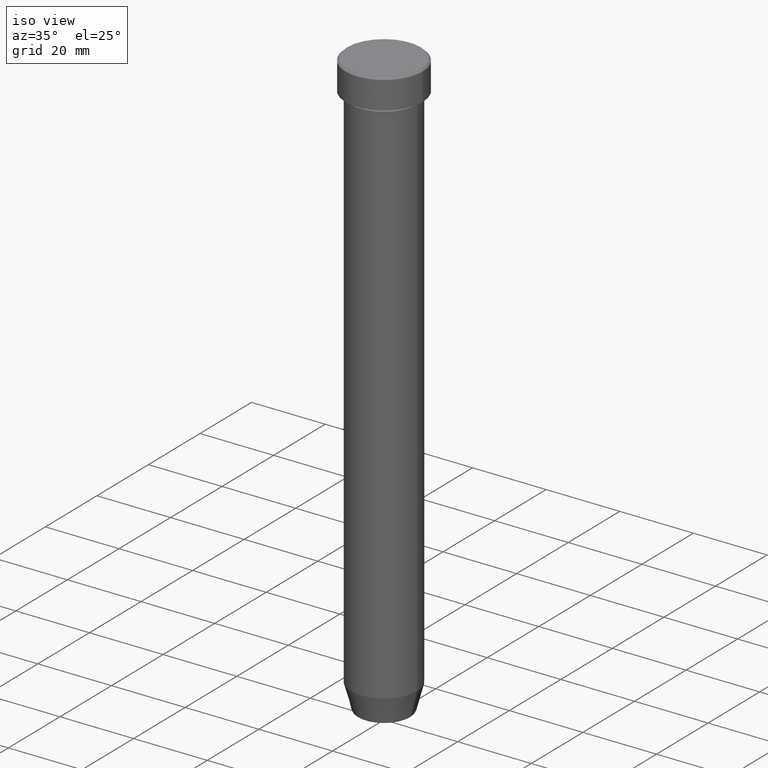
[diagram: clean part render]
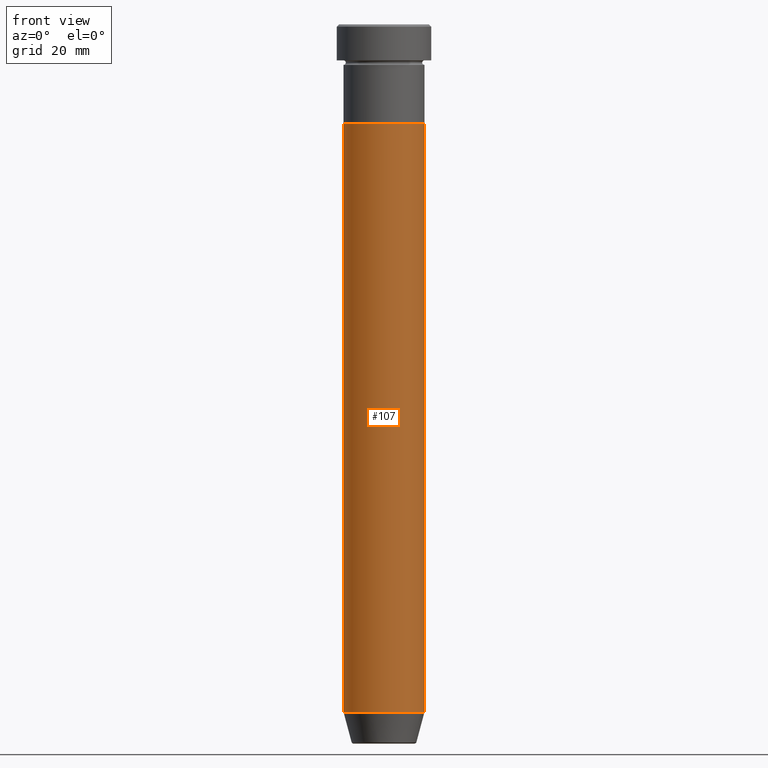
[diagram: tour spotlight — one face highlighted and labeled with its STEP entity id]
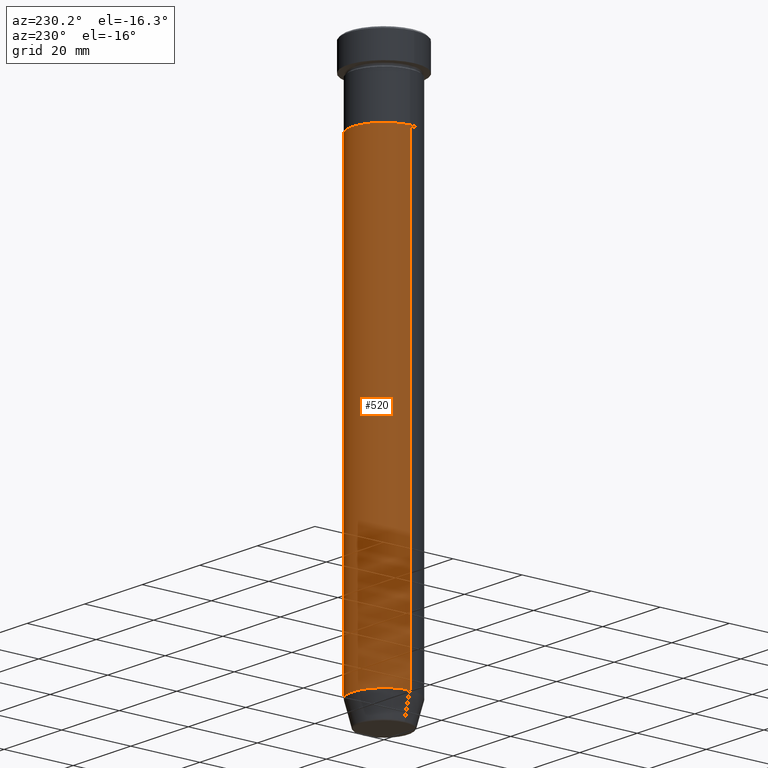
[diagram: tour spotlight — one face highlighted and labeled with its STEP entity id]
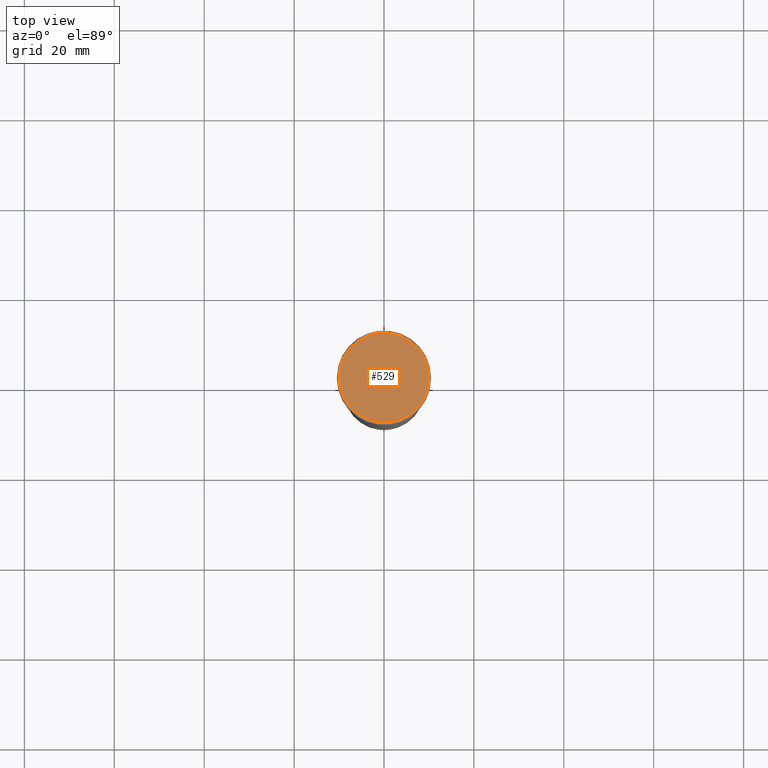
[diagram: tour spotlight — one face highlighted and labeled with its STEP entity id]
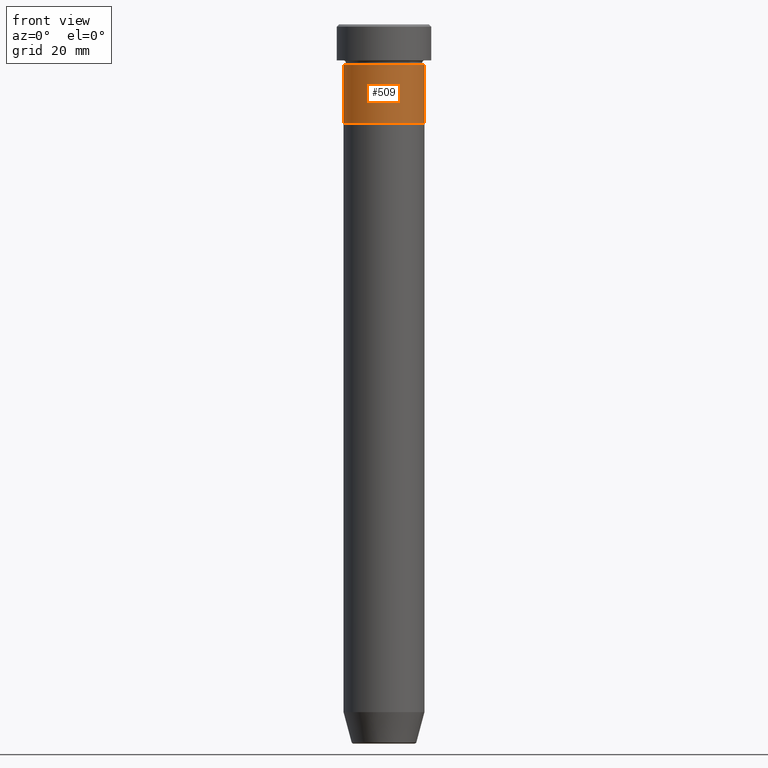
[diagram: tour spotlight — one face highlighted and labeled with its STEP entity id]
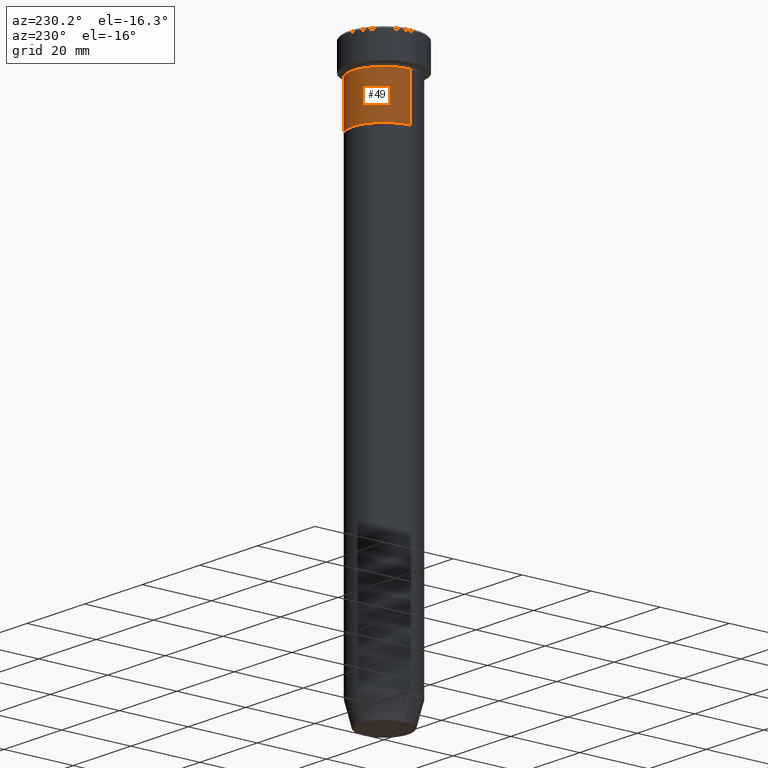
[diagram: tour spotlight — one face highlighted and labeled with its STEP entity id]
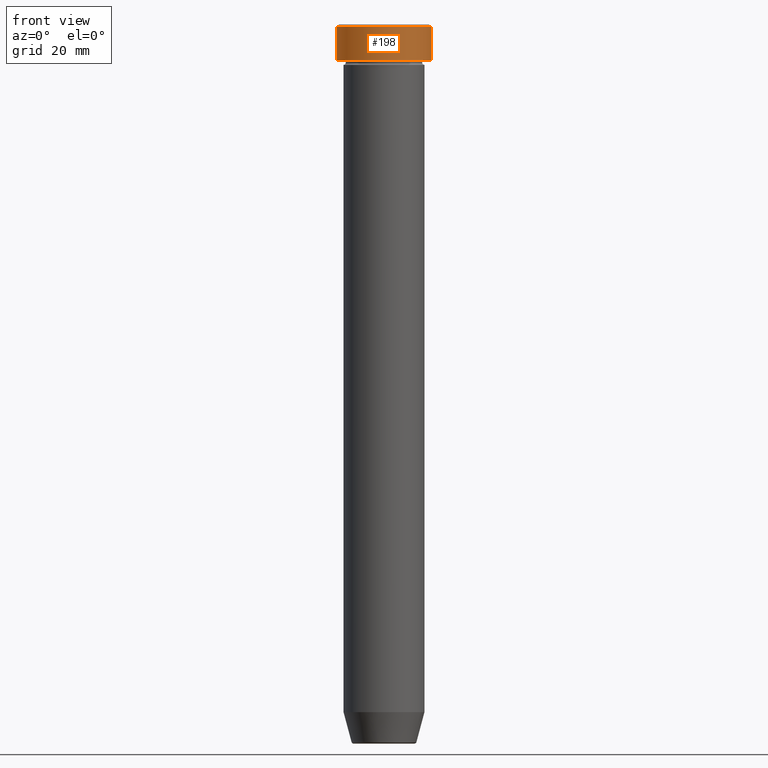
[diagram: tour spotlight — one face highlighted and labeled with its STEP entity id]
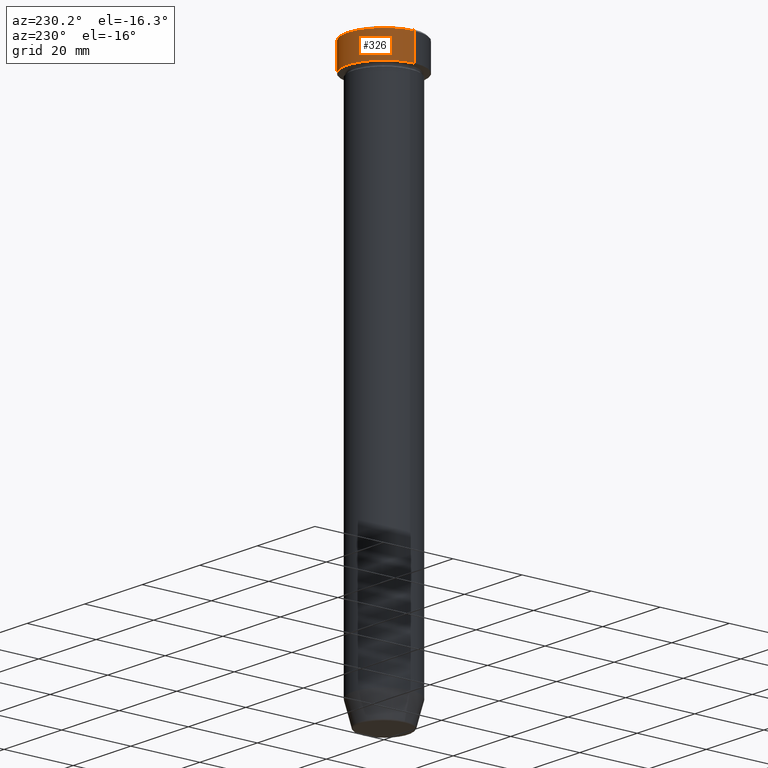
[diagram: tour spotlight — one face highlighted and labeled with its STEP entity id]
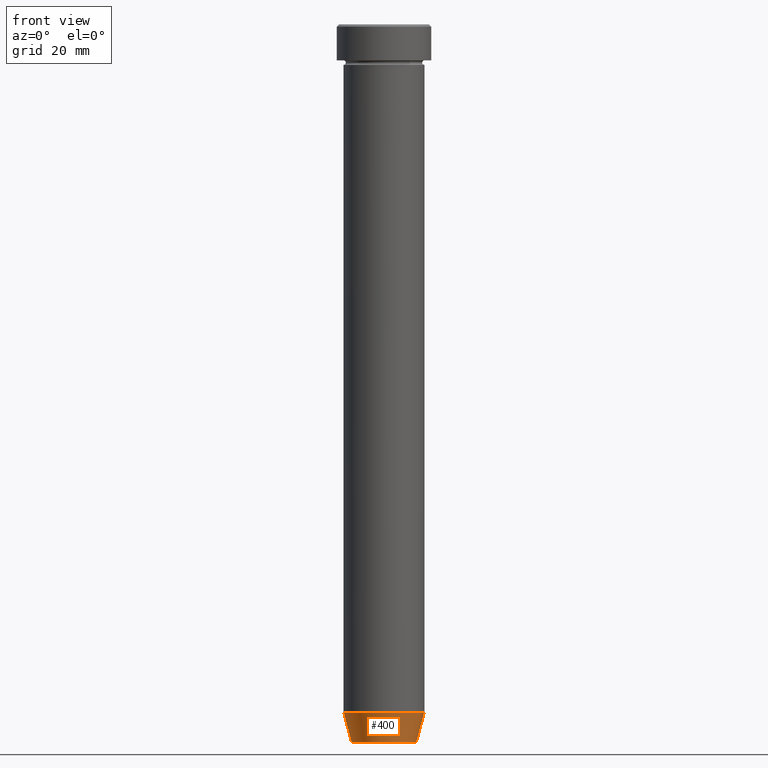
[diagram: tour spotlight — one face highlighted and labeled with its STEP entity id]
A machine part: a face-by-face anatomy tour. The part has 21 B-rep faces; the first image is the clean iso view, then the 8 largest visible faces are spotlighted one at a time (largest first), each with its STEP entity span.

Face 1 — front view, entity #107. In plain terms, the highlighted cylindrical surface (partial cylindrical patch) has radius 9 mm, axis along (-0, -0, 1).
Definition (entity closure, byte-faithful):
#29 = DIRECTION ( 'NONE',  ( 1.000000000000000000, 0.000000000000000000, 0.000000000000000000 ) ) ;
#35 = EDGE_CURVE ( 'NONE', #398, #285, #134, .T. ) ;
#41 = AXIS2_PLACEMENT_3D ( 'NONE', #179, #538, #29 ) ;
#54 = CARTESIAN_POINT ( 'NONE',  ( 0.000000000000000000, 0.000000000000000000, 0.000000000000000000 ) ) ;
#62 = CARTESIAN_POINT ( 'NONE',  ( 0.000000000000000000, 0.000000000000000000, -152.9999999999999716 ) ) ;
#69 = LINE ( 'NONE', #370, #200 ) ;
#71 = CARTESIAN_POINT ( 'NONE',  ( -9.000000000000000000, 1.102182119232617714E-15, -152.9999999999999716 ) ) ;
#107 = ADVANCED_FACE ( 'NONE', ( #293 ), #516, .T. ) ;
#123 = CARTESIAN_POINT ( 'NONE',  ( -9.000000000000000000, 1.102182119232617714E-15, 0.000000000000000000 ) ) ;
#134 = CIRCLE ( 'NONE', #41, 9.000000000000000000 ) ;
#156 = EDGE_CURVE ( 'NONE', #593, #393, #352, .T. ) ;
#165 = VECTOR ( 'NONE', #233, 1000.000000000000000 ) ;
#179 = CARTESIAN_POINT ( 'NONE',  ( 0.000000000000000000, 0.000000000000000000, -22.00000000000000000 ) ) ;
#200 = VECTOR ( 'NONE', #545, 1000.000000000000000 ) ;
#233 = DIRECTION ( 'NONE',  ( -0.000000000000000000, -0.000000000000000000, 1.000000000000000000 ) ) ;
#285 = VERTEX_POINT ( 'NONE', #501 ) ;
#293 = FACE_OUTER_BOUND ( 'NONE', #485, .T. ) ;
#319 = CARTESIAN_POINT ( 'NONE',  ( -9.000000000000000000, 1.102182119232617714E-15, -22.00000000000000000 ) ) ;
#352 = CIRCLE ( 'NONE', #415, 9.000000000000000000 ) ;
#354 = ORIENTED_EDGE ( 'NONE', *, *, #374, .F. ) ;
#363 = CARTESIAN_POINT ( 'NONE',  ( 9.000000000000000000, 0.000000000000000000, -152.9999999999999716 ) ) ;
#370 = CARTESIAN_POINT ( 'NONE',  ( 9.000000000000000000, 0.000000000000000000, 0.000000000000000000 ) ) ;
#374 = EDGE_CURVE ( 'NONE', #593, #398, #532, .T. ) ;
#392 = DIRECTION ( 'NONE',  ( -0.000000000000000000, -0.000000000000000000, 1.000000000000000000 ) ) ;
#393 = VERTEX_POINT ( 'NONE', #363 ) ;
#398 = VERTEX_POINT ( 'NONE', #319 ) ;
#409 = EDGE_CURVE ( 'NONE', #393, #285, #69, .T. ) ;
#415 = AXIS2_PLACEMENT_3D ( 'NONE', #62, #392, #489 ) ;
#435 = AXIS2_PLACEMENT_3D ( 'NONE', #54, #477, #524 ) ;
#477 = DIRECTION ( 'NONE',  ( -0.000000000000000000, -0.000000000000000000, 1.000000000000000000 ) ) ;
#485 = EDGE_LOOP ( 'NONE', ( #354, #548, #536, #518 ) ) ;
#489 = DIRECTION ( 'NONE',  ( 1.000000000000000000, 0.000000000000000000, 0.000000000000000000 ) ) ;
#501 = CARTESIAN_POINT ( 'NONE',  ( 9.000000000000000000, 0.000000000000000000, -22.00000000000000000 ) ) ;
#516 = CYLINDRICAL_SURFACE ( 'NONE', #435, 9.000000000000000000 ) ;
#518 = ORIENTED_EDGE ( 'NONE', *, *, #35, .F. ) ;
#524 = DIRECTION ( 'NONE',  ( 1.000000000000000000, 0.000000000000000000, 0.000000000000000000 ) ) ;
#532 = LINE ( 'NONE', #123, #165 ) ;
#536 = ORIENTED_EDGE ( 'NONE', *, *, #409, .T. ) ;
#538 = DIRECTION ( 'NONE',  ( -0.000000000000000000, -0.000000000000000000, 1.000000000000000000 ) ) ;
#545 = DIRECTION ( 'NONE',  ( -0.000000000000000000, -0.000000000000000000, 1.000000000000000000 ) ) ;
#548 = ORIENTED_EDGE ( 'NONE', *, *, #156, .T. ) ;
#593 = VERTEX_POINT ( 'NONE', #71 ) ;

Face 2 — auxiliary view, entity #520. In plain terms, the highlighted cylindrical surface (partial cylindrical patch) has radius 9 mm, axis along (-0, -0, 1).
Definition (entity closure, byte-faithful):
#2 = ORIENTED_EDGE ( 'NONE', *, *, #301, .F. ) ;
#34 = ORIENTED_EDGE ( 'NONE', *, *, #409, .F. ) ;
#69 = LINE ( 'NONE', #370, #200 ) ;
#71 = CARTESIAN_POINT ( 'NONE',  ( -9.000000000000000000, 1.102182119232617714E-15, -152.9999999999999716 ) ) ;
#78 = ORIENTED_EDGE ( 'NONE', *, *, #374, .T. ) ;
#79 = CARTESIAN_POINT ( 'NONE',  ( 0.000000000000000000, 0.000000000000000000, -22.00000000000000000 ) ) ;
#123 = CARTESIAN_POINT ( 'NONE',  ( -9.000000000000000000, 1.102182119232617714E-15, 0.000000000000000000 ) ) ;
#131 = DIRECTION ( 'NONE',  ( -0.000000000000000000, -0.000000000000000000, 1.000000000000000000 ) ) ;
#165 = VECTOR ( 'NONE', #233, 1000.000000000000000 ) ;
#188 = CYLINDRICAL_SURFACE ( 'NONE', #325, 9.000000000000000000 ) ;
#200 = VECTOR ( 'NONE', #545, 1000.000000000000000 ) ;
#224 = EDGE_LOOP ( 'NONE', ( #369, #78, #2, #34 ) ) ;
#230 = CIRCLE ( 'NONE', #572, 9.000000000000000000 ) ;
#233 = DIRECTION ( 'NONE',  ( -0.000000000000000000, -0.000000000000000000, 1.000000000000000000 ) ) ;
#247 = CIRCLE ( 'NONE', #377, 9.000000000000000000 ) ;
#270 = CARTESIAN_POINT ( 'NONE',  ( 0.000000000000000000, 0.000000000000000000, -152.9999999999999716 ) ) ;
#278 = DIRECTION ( 'NONE',  ( -0.000000000000000000, -0.000000000000000000, 1.000000000000000000 ) ) ;
#285 = VERTEX_POINT ( 'NONE', #501 ) ;
#289 = FACE_OUTER_BOUND ( 'NONE', #224, .T. ) ;
#301 = EDGE_CURVE ( 'NONE', #285, #398, #230, .T. ) ;
#319 = CARTESIAN_POINT ( 'NONE',  ( -9.000000000000000000, 1.102182119232617714E-15, -22.00000000000000000 ) ) ;
#325 = AXIS2_PLACEMENT_3D ( 'NONE', #476, #479, #381 ) ;
#363 = CARTESIAN_POINT ( 'NONE',  ( 9.000000000000000000, 0.000000000000000000, -152.9999999999999716 ) ) ;
#369 = ORIENTED_EDGE ( 'NONE', *, *, #416, .T. ) ;
#370 = CARTESIAN_POINT ( 'NONE',  ( 9.000000000000000000, 0.000000000000000000, 0.000000000000000000 ) ) ;
#374 = EDGE_CURVE ( 'NONE', #593, #398, #532, .T. ) ;
#377 = AXIS2_PLACEMENT_3D ( 'NONE', #270, #131, #492 ) ;
#381 = DIRECTION ( 'NONE',  ( 1.000000000000000000, 0.000000000000000000, 0.000000000000000000 ) ) ;
#393 = VERTEX_POINT ( 'NONE', #363 ) ;
#398 = VERTEX_POINT ( 'NONE', #319 ) ;
#409 = EDGE_CURVE ( 'NONE', #393, #285, #69, .T. ) ;
#416 = EDGE_CURVE ( 'NONE', #393, #593, #247, .T. ) ;
#476 = CARTESIAN_POINT ( 'NONE',  ( 0.000000000000000000, 0.000000000000000000, 0.000000000000000000 ) ) ;
#479 = DIRECTION ( 'NONE',  ( -0.000000000000000000, -0.000000000000000000, 1.000000000000000000 ) ) ;
#492 = DIRECTION ( 'NONE',  ( 1.000000000000000000, 0.000000000000000000, 0.000000000000000000 ) ) ;
#501 = CARTESIAN_POINT ( 'NONE',  ( 9.000000000000000000, 0.000000000000000000, -22.00000000000000000 ) ) ;
#503 = DIRECTION ( 'NONE',  ( 1.000000000000000000, 0.000000000000000000, 0.000000000000000000 ) ) ;
#520 = ADVANCED_FACE ( 'NONE', ( #289 ), #188, .T. ) ;
#532 = LINE ( 'NONE', #123, #165 ) ;
#545 = DIRECTION ( 'NONE',  ( -0.000000000000000000, -0.000000000000000000, 1.000000000000000000 ) ) ;
#572 = AXIS2_PLACEMENT_3D ( 'NONE', #79, #278, #503 ) ;
#593 = VERTEX_POINT ( 'NONE', #71 ) ;

Face 3 — top view, entity #529. In plain terms, the highlighted planar face has unit normal (0, -0, 1).
Definition (entity closure, byte-faithful):
#8 = VERTEX_POINT ( 'NONE', #378 ) ;
#13 = DIRECTION ( 'NONE',  ( 1.000000000000000000, 0.000000000000000000, 0.000000000000000000 ) ) ;
#16 = ORIENTED_EDGE ( 'NONE', *, *, #88, .T. ) ;
#48 = DIRECTION ( 'NONE',  ( 1.000000000000000000, 0.000000000000000000, 0.000000000000000000 ) ) ;
#50 = CIRCLE ( 'NONE', #143, 10.00000000000000178 ) ;
#88 = EDGE_CURVE ( 'NONE', #8, #454, #199, .T. ) ;
#96 = PLANE ( 'NONE',  #350 ) ;
#143 = AXIS2_PLACEMENT_3D ( 'NONE', #261, #440, #13 ) ;
#199 = CIRCLE ( 'NONE', #517, 10.00000000000000178 ) ;
#201 = CARTESIAN_POINT ( 'NONE',  ( 0.000000000000000000, 0.000000000000000000, 0.000000000000000000 ) ) ;
#245 = FACE_OUTER_BOUND ( 'NONE', #465, .T. ) ;
#252 = EDGE_CURVE ( 'NONE', #454, #8, #50, .T. ) ;
#261 = CARTESIAN_POINT ( 'NONE',  ( 0.000000000000000000, 0.000000000000000000, 0.000000000000000000 ) ) ;
#338 = DIRECTION ( 'NONE',  ( -0.000000000000000000, -0.000000000000000000, 1.000000000000000000 ) ) ;
#350 = AXIS2_PLACEMENT_3D ( 'NONE', #431, #375, #48 ) ;
#375 = DIRECTION ( 'NONE',  ( 0.000000000000000000, -0.000000000000000000, 1.000000000000000000 ) ) ;
#378 = CARTESIAN_POINT ( 'NONE',  ( -10.00000000000000178, 0.000000000000000000, 0.000000000000000000 ) ) ;
#386 = CARTESIAN_POINT ( 'NONE',  ( 10.00000000000000178, 1.255262969126037241E-15, 0.000000000000000000 ) ) ;
#431 = CARTESIAN_POINT ( 'NONE',  ( 0.000000000000000000, 0.000000000000000000, 0.000000000000000000 ) ) ;
#440 = DIRECTION ( 'NONE',  ( -0.000000000000000000, -0.000000000000000000, 1.000000000000000000 ) ) ;
#454 = VERTEX_POINT ( 'NONE', #386 ) ;
#465 = EDGE_LOOP ( 'NONE', ( #16, #577 ) ) ;
#517 = AXIS2_PLACEMENT_3D ( 'NONE', #201, #338, #521 ) ;
#521 = DIRECTION ( 'NONE',  ( 1.000000000000000000, 0.000000000000000000, 0.000000000000000000 ) ) ;
#529 = ADVANCED_FACE ( 'NONE', ( #245 ), #96, .T. ) ;
#577 = ORIENTED_EDGE ( 'NONE', *, *, #252, .T. ) ;

Face 4 — front view, entity #509. In plain terms, the highlighted cylindrical surface (partial cylindrical patch) has radius 9 mm, axis along (-0, -0, 1).
Definition (entity closure, byte-faithful):
#10 = CARTESIAN_POINT ( 'NONE',  ( -9.000000000000000000, 1.102182119232617714E-15, -9.000000000000001776 ) ) ;
#51 = DIRECTION ( 'NONE',  ( -0.000000000000000000, -0.000000000000000000, 1.000000000000000000 ) ) ;
#64 = DIRECTION ( 'NONE',  ( -0.000000000000000000, -0.000000000000000000, 1.000000000000000000 ) ) ;
#73 = CARTESIAN_POINT ( 'NONE',  ( 9.000000000000000000, 0.000000000000000000, 0.000000000000000000 ) ) ;
#81 = VERTEX_POINT ( 'NONE', #10 ) ;
#87 = CARTESIAN_POINT ( 'NONE',  ( 0.000000000000000000, 0.000000000000000000, 0.000000000000000000 ) ) ;
#97 = VERTEX_POINT ( 'NONE', #484 ) ;
#102 = ORIENTED_EDGE ( 'NONE', *, *, #333, .T. ) ;
#119 = EDGE_CURVE ( 'NONE', #81, #97, #229, .T. ) ;
#124 = VECTOR ( 'NONE', #276, 1000.000000000000000 ) ;
#144 = EDGE_CURVE ( 'NONE', #367, #81, #157, .T. ) ;
#148 = CARTESIAN_POINT ( 'NONE',  ( 0.000000000000000000, 0.000000000000000000, -9.000000000000001776 ) ) ;
#157 = LINE ( 'NONE', #248, #300 ) ;
#178 = CARTESIAN_POINT ( 'NONE',  ( -9.000000000000000000, 1.102182119232617714E-15, -22.00000000000000000 ) ) ;
#217 = DIRECTION ( 'NONE',  ( 1.000000000000000000, 0.000000000000000000, 0.000000000000000000 ) ) ;
#218 = LINE ( 'NONE', #73, #124 ) ;
#229 = CIRCLE ( 'NONE', #280, 9.000000000000000000 ) ;
#248 = CARTESIAN_POINT ( 'NONE',  ( -9.000000000000000000, 1.102182119232617714E-15, 0.000000000000000000 ) ) ;
#254 = FACE_OUTER_BOUND ( 'NONE', #344, .T. ) ;
#276 = DIRECTION ( 'NONE',  ( -0.000000000000000000, -0.000000000000000000, 1.000000000000000000 ) ) ;
#280 = AXIS2_PLACEMENT_3D ( 'NONE', #148, #51, #396 ) ;
#295 = DIRECTION ( 'NONE',  ( -0.000000000000000000, -0.000000000000000000, 1.000000000000000000 ) ) ;
#298 = ORIENTED_EDGE ( 'NONE', *, *, #144, .F. ) ;
#300 = VECTOR ( 'NONE', #564, 1000.000000000000000 ) ;
#330 = CYLINDRICAL_SURFACE ( 'NONE', #597, 9.000000000000000000 ) ;
#333 = EDGE_CURVE ( 'NONE', #408, #97, #218, .T. ) ;
#344 = EDGE_LOOP ( 'NONE', ( #298, #526, #102, #575 ) ) ;
#367 = VERTEX_POINT ( 'NONE', #178 ) ;
#396 = DIRECTION ( 'NONE',  ( 1.000000000000000000, 0.000000000000000000, 0.000000000000000000 ) ) ;
#408 = VERTEX_POINT ( 'NONE', #494 ) ;
#414 = CIRCLE ( 'NONE', #589, 9.000000000000000000 ) ;
#442 = CARTESIAN_POINT ( 'NONE',  ( 0.000000000000000000, 0.000000000000000000, -22.00000000000000000 ) ) ;
#484 = CARTESIAN_POINT ( 'NONE',  ( 9.000000000000000000, 0.000000000000000000, -9.000000000000001776 ) ) ;
#494 = CARTESIAN_POINT ( 'NONE',  ( 9.000000000000000000, 0.000000000000000000, -22.00000000000000000 ) ) ;
#509 = ADVANCED_FACE ( 'NONE', ( #254 ), #330, .T. ) ;
#515 = DIRECTION ( 'NONE',  ( 1.000000000000000000, 0.000000000000000000, 0.000000000000000000 ) ) ;
#526 = ORIENTED_EDGE ( 'NONE', *, *, #578, .T. ) ;
#564 = DIRECTION ( 'NONE',  ( -0.000000000000000000, -0.000000000000000000, 1.000000000000000000 ) ) ;
#575 = ORIENTED_EDGE ( 'NONE', *, *, #119, .F. ) ;
#578 = EDGE_CURVE ( 'NONE', #367, #408, #414, .T. ) ;
#589 = AXIS2_PLACEMENT_3D ( 'NONE', #442, #64, #217 ) ;
#597 = AXIS2_PLACEMENT_3D ( 'NONE', #87, #295, #515 ) ;

Face 5 — auxiliary view, entity #49. In plain terms, the highlighted cylindrical surface (partial cylindrical patch) has radius 9 mm, axis along (-0, -0, 1).
Definition (entity closure, byte-faithful):
#6 = CARTESIAN_POINT ( 'NONE',  ( 0.000000000000000000, 0.000000000000000000, -22.00000000000000000 ) ) ;
#10 = CARTESIAN_POINT ( 'NONE',  ( -9.000000000000000000, 1.102182119232617714E-15, -9.000000000000001776 ) ) ;
#26 = DIRECTION ( 'NONE',  ( 1.000000000000000000, 0.000000000000000000, 0.000000000000000000 ) ) ;
#49 = ADVANCED_FACE ( 'NONE', ( #253 ), #437, .T. ) ;
#73 = CARTESIAN_POINT ( 'NONE',  ( 9.000000000000000000, 0.000000000000000000, 0.000000000000000000 ) ) ;
#81 = VERTEX_POINT ( 'NONE', #10 ) ;
#97 = VERTEX_POINT ( 'NONE', #484 ) ;
#116 = DIRECTION ( 'NONE',  ( -0.000000000000000000, -0.000000000000000000, 1.000000000000000000 ) ) ;
#124 = VECTOR ( 'NONE', #276, 1000.000000000000000 ) ;
#133 = ORIENTED_EDGE ( 'NONE', *, *, #333, .F. ) ;
#135 = CIRCLE ( 'NONE', #599, 9.000000000000000000 ) ;
#144 = EDGE_CURVE ( 'NONE', #367, #81, #157, .T. ) ;
#157 = LINE ( 'NONE', #248, #300 ) ;
#160 = CARTESIAN_POINT ( 'NONE',  ( 0.000000000000000000, 0.000000000000000000, 0.000000000000000000 ) ) ;
#168 = DIRECTION ( 'NONE',  ( -0.000000000000000000, -0.000000000000000000, 1.000000000000000000 ) ) ;
#172 = ORIENTED_EDGE ( 'NONE', *, *, #181, .T. ) ;
#178 = CARTESIAN_POINT ( 'NONE',  ( -9.000000000000000000, 1.102182119232617714E-15, -22.00000000000000000 ) ) ;
#180 = AXIS2_PLACEMENT_3D ( 'NONE', #160, #339, #394 ) ;
#181 = EDGE_CURVE ( 'NONE', #408, #367, #303, .T. ) ;
#193 = DIRECTION ( 'NONE',  ( 1.000000000000000000, 0.000000000000000000, 0.000000000000000000 ) ) ;
#218 = LINE ( 'NONE', #73, #124 ) ;
#248 = CARTESIAN_POINT ( 'NONE',  ( -9.000000000000000000, 1.102182119232617714E-15, 0.000000000000000000 ) ) ;
#253 = FACE_OUTER_BOUND ( 'NONE', #502, .T. ) ;
#276 = DIRECTION ( 'NONE',  ( -0.000000000000000000, -0.000000000000000000, 1.000000000000000000 ) ) ;
#300 = VECTOR ( 'NONE', #564, 1000.000000000000000 ) ;
#303 = CIRCLE ( 'NONE', #380, 9.000000000000000000 ) ;
#333 = EDGE_CURVE ( 'NONE', #408, #97, #218, .T. ) ;
#339 = DIRECTION ( 'NONE',  ( -0.000000000000000000, -0.000000000000000000, 1.000000000000000000 ) ) ;
#358 = EDGE_CURVE ( 'NONE', #97, #81, #135, .T. ) ;
#365 = CARTESIAN_POINT ( 'NONE',  ( 0.000000000000000000, 0.000000000000000000, -9.000000000000001776 ) ) ;
#367 = VERTEX_POINT ( 'NONE', #178 ) ;
#380 = AXIS2_PLACEMENT_3D ( 'NONE', #6, #116, #193 ) ;
#394 = DIRECTION ( 'NONE',  ( 1.000000000000000000, 0.000000000000000000, 0.000000000000000000 ) ) ;
#408 = VERTEX_POINT ( 'NONE', #494 ) ;
#437 = CYLINDRICAL_SURFACE ( 'NONE', #180, 9.000000000000000000 ) ;
#464 = ORIENTED_EDGE ( 'NONE', *, *, #144, .T. ) ;
#484 = CARTESIAN_POINT ( 'NONE',  ( 9.000000000000000000, 0.000000000000000000, -9.000000000000001776 ) ) ;
#494 = CARTESIAN_POINT ( 'NONE',  ( 9.000000000000000000, 0.000000000000000000, -22.00000000000000000 ) ) ;
#502 = EDGE_LOOP ( 'NONE', ( #172, #464, #540, #133 ) ) ;
#540 = ORIENTED_EDGE ( 'NONE', *, *, #358, .F. ) ;
#564 = DIRECTION ( 'NONE',  ( -0.000000000000000000, -0.000000000000000000, 1.000000000000000000 ) ) ;
#599 = AXIS2_PLACEMENT_3D ( 'NONE', #365, #168, #26 ) ;

Face 6 — front view, entity #198. In plain terms, the highlighted cylindrical surface (partial cylindrical patch) has radius 10.5 mm, axis along (-0, -0, 1).
Definition (entity closure, byte-faithful):
#9 = AXIS2_PLACEMENT_3D ( 'NONE', #337, #519, #197 ) ;
#15 = CARTESIAN_POINT ( 'NONE',  ( 10.50000000000000000, 0.000000000000000000, -8.000000000000000000 ) ) ;
#42 = AXIS2_PLACEMENT_3D ( 'NONE', #204, #159, #346 ) ;
#65 = DIRECTION ( 'NONE',  ( -0.000000000000000000, -0.000000000000000000, 1.000000000000000000 ) ) ;
#111 = CIRCLE ( 'NONE', #42, 10.50000000000000000 ) ;
#122 = ORIENTED_EDGE ( 'NONE', *, *, #566, .T. ) ;
#128 = CARTESIAN_POINT ( 'NONE',  ( 10.50000000000000000, 0.000000000000000000, -0.5000000000000023315 ) ) ;
#142 = CARTESIAN_POINT ( 'NONE',  ( -10.50000000000000000, 1.285879139104720831E-15, -8.000000000000000000 ) ) ;
#147 = LINE ( 'NONE', #557, #499 ) ;
#159 = DIRECTION ( 'NONE',  ( 0.000000000000000000, 0.000000000000000000, -1.000000000000000000 ) ) ;
#189 = AXIS2_PLACEMENT_3D ( 'NONE', #385, #65, #565 ) ;
#195 = CYLINDRICAL_SURFACE ( 'NONE', #189, 10.50000000000000000 ) ;
#197 = DIRECTION ( 'NONE',  ( 1.000000000000000000, 0.000000000000000000, 0.000000000000000000 ) ) ;
#198 = ADVANCED_FACE ( 'NONE', ( #523 ), #195, .T. ) ;
#202 = ORIENTED_EDGE ( 'NONE', *, *, #447, .F. ) ;
#204 = CARTESIAN_POINT ( 'NONE',  ( 0.000000000000000000, 0.000000000000000000, -0.5000000000000023315 ) ) ;
#221 = EDGE_LOOP ( 'NONE', ( #202, #122, #569, #584 ) ) ;
#234 = CARTESIAN_POINT ( 'NONE',  ( -10.50000000000000000, 1.285879139104720831E-15, -0.5000000000000023315 ) ) ;
#257 = CIRCLE ( 'NONE', #9, 10.50000000000000000 ) ;
#262 = VERTEX_POINT ( 'NONE', #15 ) ;
#264 = EDGE_CURVE ( 'NONE', #376, #534, #111, .T. ) ;
#332 = DIRECTION ( 'NONE',  ( -0.000000000000000000, -0.000000000000000000, 1.000000000000000000 ) ) ;
#337 = CARTESIAN_POINT ( 'NONE',  ( 0.000000000000000000, 0.000000000000000000, -8.000000000000000000 ) ) ;
#346 = DIRECTION ( 'NONE',  ( 1.000000000000000000, 0.000000000000000000, 0.000000000000000000 ) ) ;
#376 = VERTEX_POINT ( 'NONE', #128 ) ;
#383 = CARTESIAN_POINT ( 'NONE',  ( -10.50000000000000000, 1.285879139104720831E-15, 0.000000000000000000 ) ) ;
#385 = CARTESIAN_POINT ( 'NONE',  ( 0.000000000000000000, 0.000000000000000000, 0.000000000000000000 ) ) ;
#421 = VECTOR ( 'NONE', #429, 1000.000000000000000 ) ;
#429 = DIRECTION ( 'NONE',  ( -0.000000000000000000, -0.000000000000000000, 1.000000000000000000 ) ) ;
#447 = EDGE_CURVE ( 'NONE', #553, #534, #513, .T. ) ;
#472 = EDGE_CURVE ( 'NONE', #262, #376, #147, .T. ) ;
#499 = VECTOR ( 'NONE', #332, 1000.000000000000000 ) ;
#513 = LINE ( 'NONE', #383, #421 ) ;
#519 = DIRECTION ( 'NONE',  ( -0.000000000000000000, -0.000000000000000000, 1.000000000000000000 ) ) ;
#523 = FACE_OUTER_BOUND ( 'NONE', #221, .T. ) ;
#534 = VERTEX_POINT ( 'NONE', #234 ) ;
#553 = VERTEX_POINT ( 'NONE', #142 ) ;
#557 = CARTESIAN_POINT ( 'NONE',  ( 10.50000000000000000, 0.000000000000000000, 0.000000000000000000 ) ) ;
#565 = DIRECTION ( 'NONE',  ( 1.000000000000000000, 0.000000000000000000, 0.000000000000000000 ) ) ;
#566 = EDGE_CURVE ( 'NONE', #553, #262, #257, .T. ) ;
#569 = ORIENTED_EDGE ( 'NONE', *, *, #472, .T. ) ;
#584 = ORIENTED_EDGE ( 'NONE', *, *, #264, .T. ) ;

Face 7 — auxiliary view, entity #326. In plain terms, the highlighted cylindrical surface (partial cylindrical patch) has radius 10.5 mm, axis along (-0, -0, 1).
Definition (entity closure, byte-faithful):
#15 = CARTESIAN_POINT ( 'NONE',  ( 10.50000000000000000, 0.000000000000000000, -8.000000000000000000 ) ) ;
#18 = FACE_OUTER_BOUND ( 'NONE', #117, .T. ) ;
#75 = DIRECTION ( 'NONE',  ( -0.000000000000000000, -0.000000000000000000, 1.000000000000000000 ) ) ;
#117 = EDGE_LOOP ( 'NONE', ( #136, #166, #139, #582 ) ) ;
#120 = CARTESIAN_POINT ( 'NONE',  ( 0.000000000000000000, 0.000000000000000000, 0.000000000000000000 ) ) ;
#128 = CARTESIAN_POINT ( 'NONE',  ( 10.50000000000000000, 0.000000000000000000, -0.5000000000000023315 ) ) ;
#136 = ORIENTED_EDGE ( 'NONE', *, *, #546, .T. ) ;
#139 = ORIENTED_EDGE ( 'NONE', *, *, #274, .T. ) ;
#142 = CARTESIAN_POINT ( 'NONE',  ( -10.50000000000000000, 1.285879139104720831E-15, -8.000000000000000000 ) ) ;
#147 = LINE ( 'NONE', #557, #499 ) ;
#166 = ORIENTED_EDGE ( 'NONE', *, *, #447, .T. ) ;
#175 = DIRECTION ( 'NONE',  ( 1.000000000000000000, 0.000000000000000000, 0.000000000000000000 ) ) ;
#206 = CARTESIAN_POINT ( 'NONE',  ( 0.000000000000000000, 0.000000000000000000, -0.5000000000000023315 ) ) ;
#234 = CARTESIAN_POINT ( 'NONE',  ( -10.50000000000000000, 1.285879139104720831E-15, -0.5000000000000023315 ) ) ;
#249 = CARTESIAN_POINT ( 'NONE',  ( 0.000000000000000000, 0.000000000000000000, -8.000000000000000000 ) ) ;
#262 = VERTEX_POINT ( 'NONE', #15 ) ;
#274 = EDGE_CURVE ( 'NONE', #534, #376, #362, .T. ) ;
#281 = AXIS2_PLACEMENT_3D ( 'NONE', #120, #75, #175 ) ;
#291 = DIRECTION ( 'NONE',  ( -0.000000000000000000, -0.000000000000000000, 1.000000000000000000 ) ) ;
#326 = ADVANCED_FACE ( 'NONE', ( #18 ), #359, .T. ) ;
#332 = DIRECTION ( 'NONE',  ( -0.000000000000000000, -0.000000000000000000, 1.000000000000000000 ) ) ;
#359 = CYLINDRICAL_SURFACE ( 'NONE', #281, 10.50000000000000000 ) ;
#362 = CIRCLE ( 'NONE', #475, 10.50000000000000000 ) ;
#376 = VERTEX_POINT ( 'NONE', #128 ) ;
#383 = CARTESIAN_POINT ( 'NONE',  ( -10.50000000000000000, 1.285879139104720831E-15, 0.000000000000000000 ) ) ;
#421 = VECTOR ( 'NONE', #429, 1000.000000000000000 ) ;
#429 = DIRECTION ( 'NONE',  ( -0.000000000000000000, -0.000000000000000000, 1.000000000000000000 ) ) ;
#447 = EDGE_CURVE ( 'NONE', #553, #534, #513, .T. ) ;
#463 = DIRECTION ( 'NONE',  ( 1.000000000000000000, 0.000000000000000000, 0.000000000000000000 ) ) ;
#472 = EDGE_CURVE ( 'NONE', #262, #376, #147, .T. ) ;
#475 = AXIS2_PLACEMENT_3D ( 'NONE', #206, #543, #541 ) ;
#499 = VECTOR ( 'NONE', #332, 1000.000000000000000 ) ;
#513 = LINE ( 'NONE', #383, #421 ) ;
#534 = VERTEX_POINT ( 'NONE', #234 ) ;
#537 = AXIS2_PLACEMENT_3D ( 'NONE', #249, #291, #463 ) ;
#541 = DIRECTION ( 'NONE',  ( 1.000000000000000000, 0.000000000000000000, 0.000000000000000000 ) ) ;
#543 = DIRECTION ( 'NONE',  ( 0.000000000000000000, 0.000000000000000000, -1.000000000000000000 ) ) ;
#546 = EDGE_CURVE ( 'NONE', #262, #553, #571, .T. ) ;
#553 = VERTEX_POINT ( 'NONE', #142 ) ;
#557 = CARTESIAN_POINT ( 'NONE',  ( 10.50000000000000000, 0.000000000000000000, 0.000000000000000000 ) ) ;
#571 = CIRCLE ( 'NONE', #537, 10.50000000000000000 ) ;
#582 = ORIENTED_EDGE ( 'NONE', *, *, #472, .F. ) ;

Face 8 — front view, entity #400. In plain terms, the highlighted conical surface has half-angle 15 deg.
Definition (entity closure, byte-faithful):
#4 = EDGE_CURVE ( 'NONE', #504, #593, #260, .T. ) ;
#7 = DIRECTION ( 'NONE',  ( 0.2588190451025212391, 0.000000000000000000, 0.9659258262890680902 ) ) ;
#21 = ORIENTED_EDGE ( 'NONE', *, *, #467, .T. ) ;
#33 = VERTEX_POINT ( 'NONE', #470 ) ;
#36 = CARTESIAN_POINT ( 'NONE',  ( 0.000000000000000000, 0.000000000000000000, -160.0000000000000000 ) ) ;
#52 = ORIENTED_EDGE ( 'NONE', *, *, #315, .T. ) ;
#62 = CARTESIAN_POINT ( 'NONE',  ( 0.000000000000000000, 0.000000000000000000, -152.9999999999999716 ) ) ;
#71 = CARTESIAN_POINT ( 'NONE',  ( -9.000000000000000000, 1.102182119232617714E-15, -152.9999999999999716 ) ) ;
#152 = CARTESIAN_POINT ( 'NONE',  ( -7.124355652982127474, 8.724819346411914255E-16, -160.0000000000000000 ) ) ;
#156 = EDGE_CURVE ( 'NONE', #593, #393, #352, .T. ) ;
#191 = LINE ( 'NONE', #471, #277 ) ;
#213 = CARTESIAN_POINT ( 'NONE',  ( 0.000000000000000000, 0.000000000000000000, -159.6294095225512706 ) ) ;
#214 = CONICAL_SURFACE ( 'NONE', #507, 7.124355652982127474, 0.2617993877991499629 ) ;
#223 = DIRECTION ( 'NONE',  ( -0.000000000000000000, -0.000000000000000000, 1.000000000000000000 ) ) ;
#255 = EDGE_LOOP ( 'NONE', ( #522, #52, #21, #462 ) ) ;
#260 = LINE ( 'NONE', #152, #311 ) ;
#267 = DIRECTION ( 'NONE',  ( -1.000000000000000000, 0.000000000000000000, 0.000000000000000000 ) ) ;
#277 = VECTOR ( 'NONE', #7, 1000.000000000000114 ) ;
#290 = CARTESIAN_POINT ( 'NONE',  ( -7.223655072137179722, 9.934123627281759193E-16, -159.6294095225512706 ) ) ;
#311 = VECTOR ( 'NONE', #331, 1000.000000000000114 ) ;
#313 = CIRCLE ( 'NONE', #460, 7.223655072137178834 ) ;
#314 = DIRECTION ( 'NONE',  ( -0.000000000000000000, -0.000000000000000000, 1.000000000000000000 ) ) ;
#315 = EDGE_CURVE ( 'NONE', #504, #33, #313, .T. ) ;
#331 = DIRECTION ( 'NONE',  ( -0.2588190451025212391, 3.169619151431771721E-17, 0.9659258262890680902 ) ) ;
#352 = CIRCLE ( 'NONE', #415, 9.000000000000000000 ) ;
#363 = CARTESIAN_POINT ( 'NONE',  ( 9.000000000000000000, 0.000000000000000000, -152.9999999999999716 ) ) ;
#392 = DIRECTION ( 'NONE',  ( -0.000000000000000000, -0.000000000000000000, 1.000000000000000000 ) ) ;
#393 = VERTEX_POINT ( 'NONE', #363 ) ;
#400 = ADVANCED_FACE ( 'NONE', ( #506 ), #214, .T. ) ;
#412 = DIRECTION ( 'NONE',  ( 1.000000000000000000, 0.000000000000000000, 0.000000000000000000 ) ) ;
#415 = AXIS2_PLACEMENT_3D ( 'NONE', #62, #392, #489 ) ;
#460 = AXIS2_PLACEMENT_3D ( 'NONE', #213, #223, #267 ) ;
#462 = ORIENTED_EDGE ( 'NONE', *, *, #156, .F. ) ;
#467 = EDGE_CURVE ( 'NONE', #33, #393, #191, .T. ) ;
#470 = CARTESIAN_POINT ( 'NONE',  ( 7.223655072137179722, 0.000000000000000000, -159.6294095225512706 ) ) ;
#471 = CARTESIAN_POINT ( 'NONE',  ( 7.124355652982127474, 0.000000000000000000, -160.0000000000000000 ) ) ;
#489 = DIRECTION ( 'NONE',  ( 1.000000000000000000, 0.000000000000000000, 0.000000000000000000 ) ) ;
#504 = VERTEX_POINT ( 'NONE', #290 ) ;
#506 = FACE_OUTER_BOUND ( 'NONE', #255, .T. ) ;
#507 = AXIS2_PLACEMENT_3D ( 'NONE', #36, #314, #412 ) ;
#522 = ORIENTED_EDGE ( 'NONE', *, *, #4, .F. ) ;
#593 = VERTEX_POINT ( 'NONE', #71 ) ;